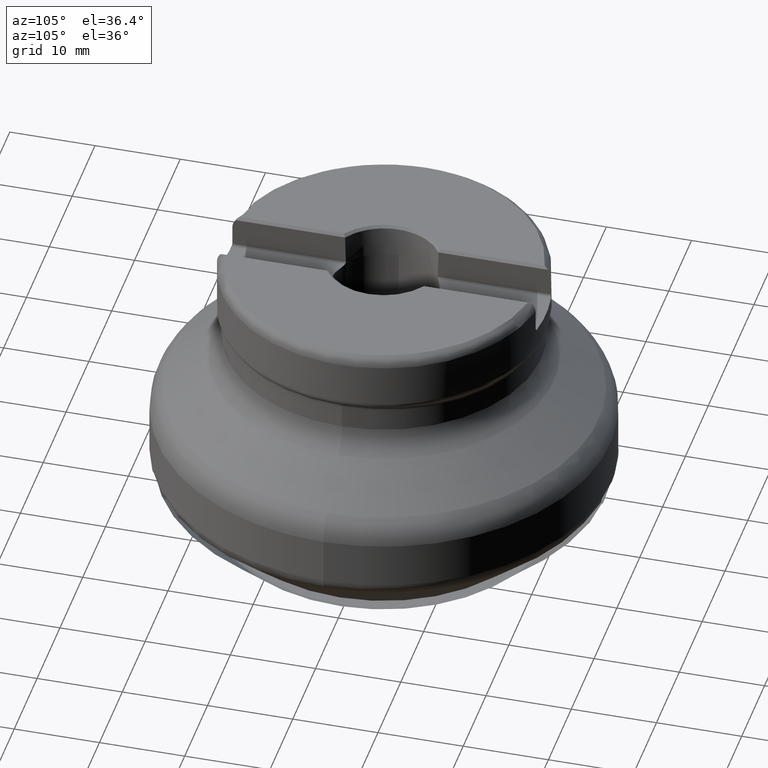
[diagram: clean part render]
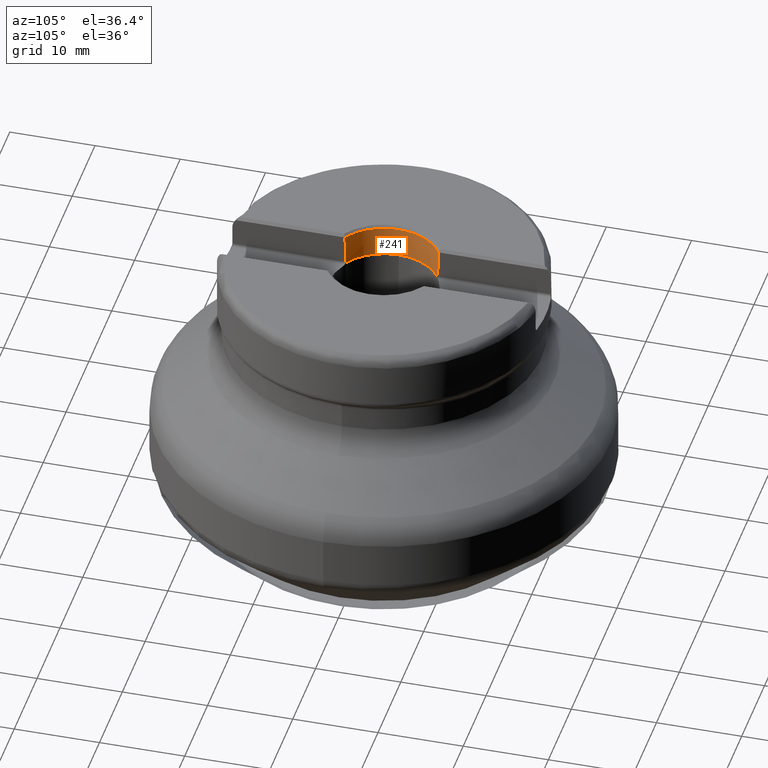
[diagram: same view with one face highlighted and labeled with its STEP entity id]
A machine part, auxiliary view. The second image highlights one B-rep face of the part: STEP entity #241.
In plain terms, the highlighted conical surface has half-angle 1.5 deg.
Its self-contained STEP definition (entity closure, byte-faithful):
#112=ELLIPSE('',#1220,8.99105036735796,6.35545258868396);
#113=ELLIPSE('',#1222,8.99105036735796,6.35545258868396);
#168=CONICAL_SURFACE('',#1223,6.45474368627675,1.49999999999999);
#206=FACE_OUTER_BOUND('',#507,.T.);
#241=ADVANCED_FACE('',(#206),#168,.F.);
#507=EDGE_LOOP('',(#667,#668,#669,#670,#671,#672,#673,#674));
#667=ORIENTED_EDGE('',*,*,#986,.T.);
#668=ORIENTED_EDGE('',*,*,#987,.T.);
#669=ORIENTED_EDGE('',*,*,#988,.T.);
#670=ORIENTED_EDGE('',*,*,#989,.F.);
#671=ORIENTED_EDGE('',*,*,#990,.T.);
#672=ORIENTED_EDGE('',*,*,#991,.F.);
#673=ORIENTED_EDGE('',*,*,#992,.T.);
#674=ORIENTED_EDGE('',*,*,#993,.T.);
#887=VERTEX_POINT('',#2070);
#888=VERTEX_POINT('',#2071);
#889=VERTEX_POINT('',#2073);
#890=VERTEX_POINT('',#2081);
#891=VERTEX_POINT('',#2089);
#892=VERTEX_POINT('',#2091);
#893=VERTEX_POINT('',#2099);
#894=VERTEX_POINT('',#2107);
#986=EDGE_CURVE('',#887,#888,#1077,.T.);
#987=EDGE_CURVE('',#888,#889,#112,.T.);
#988=EDGE_CURVE('',#889,#890,#1153,.T.);
#989=EDGE_CURVE('',#891,#890,#1154,.T.);
#990=EDGE_CURVE('',#891,#892,#1078,.T.);
#991=EDGE_CURVE('',#893,#892,#1155,.T.);
#992=EDGE_CURVE('',#893,#894,#1156,.T.);
#993=EDGE_CURVE('',#894,#887,#113,.T.);
#1077=CIRCLE('',#1219,6.44165341747055);
#1078=CIRCLE('',#1221,6.35);
#1153=B_SPLINE_CURVE_WITH_KNOTS('',3,(#2074,#2075,#2076,#2077,#2078,#2079,
#2080),.UNSPECIFIED.,.F.,.F.,(4,3,4),(0.,0.431382607771492,1.),
 .UNSPECIFIED.);
#1154=B_SPLINE_CURVE_WITH_KNOTS('',3,(#2082,#2083,#2084,#2085,#2086,#2087,
#2088),.UNSPECIFIED.,.F.,.F.,(4,3,4),(0.,0.166591357031262,1.),
 .UNSPECIFIED.);
#1155=B_SPLINE_CURVE_WITH_KNOTS('',3,(#2092,#2093,#2094,#2095,#2096,#2097,
#2098),.UNSPECIFIED.,.F.,.F.,(4,3,4),(0.,0.166697091380398,1.),
 .UNSPECIFIED.);
#1156=B_SPLINE_CURVE_WITH_KNOTS('',3,(#2100,#2101,#2102,#2103,#2104,#2105,
#2106),.UNSPECIFIED.,.F.,.F.,(4,3,4),(0.,0.568617392228516,1.),
 .UNSPECIFIED.);
#1219=AXIS2_PLACEMENT_3D('',#2069,#1397,#1398);
#1220=AXIS2_PLACEMENT_3D('',#2072,#1399,#1400);
#1221=AXIS2_PLACEMENT_3D('',#2090,#1401,#1402);
#1222=AXIS2_PLACEMENT_3D('',#2108,#1403,#1404);
#1223=AXIS2_PLACEMENT_3D('',#2109,#1405,#1406);
#1397=DIRECTION('',(-2.53438838747611E-15,9.45015244024697E-17,1.));
#1398=DIRECTION('',(-1.,0.,-2.1543828747719E-15));
#1399=DIRECTION('',(0.707106781186551,0.,0.707106781186544));
#1400=DIRECTION('',(-0.707106781186544,-4.97006419292196E-15,0.707106781186551));
#1401=DIRECTION('',(-1.17145536458252E-15,3.51436609374757E-15,-1.));
#1402=DIRECTION('',(-1.,0.,1.09273919746571E-15));
#1403=DIRECTION('',(0.707106781186551,0.,0.707106781186544));
#1404=DIRECTION('',(-0.707106781186544,-4.97006419292196E-15,0.707106781186551));
#1405=DIRECTION('',(1.17145536458252E-15,-3.51436609374757E-15,1.));
#1406=DIRECTION('',(-1.,-4.53150750976749E-30,2.12584328462661E-15));
#2069=CARTESIAN_POINT('',(4.05617624272186E-14,-1.21685287281656E-13,34.6251028025074));
#2070=CARTESIAN_POINT('',(-3.37510280250728,5.48667292840715,34.6251028025074));
#2071=CARTESIAN_POINT('',(-3.37510280250728,-5.48667292840739,34.6251028025074));
#2072=CARTESIAN_POINT('',(-0.166480470848489,-1.10994087073654E-13,31.4164804708485));
#2073=CARTESIAN_POINT('',(-3.37499999999996,-5.48673300509829,34.625));
#2074=CARTESIAN_POINT('',(-3.37499999999996,-5.48673300509829,34.625));
#2075=CARTESIAN_POINT('',(-3.37499999999996,-5.47186168036689,34.1412750947273));
#2076=CARTESIAN_POINT('',(-3.37499999999996,-5.45697377547707,33.6575506988856));
#2077=CARTESIAN_POINT('',(-3.37499999999996,-5.44206887898418,33.1738268268874));
#2078=CARTESIAN_POINT('',(-3.37499999999996,-5.42242232119293,32.5362169641989));
#2079=CARTESIAN_POINT('',(-3.37499999999996,-5.40274624282224,31.8986080103927));
#2080=CARTESIAN_POINT('',(-3.37499999999996,-5.38303966235516,31.261));
#2081=CARTESIAN_POINT('',(-3.37499999999996,-5.38303966235516,31.261));
#2082=CARTESIAN_POINT('',(-3.35117017425624,-5.3937147183714,31.125));
#2083=CARTESIAN_POINT('',(-3.35377940992307,-5.39231606449995,31.1322170340843));
#2084=CARTESIAN_POINT('',(-3.35618986816,-5.39104159601097,31.1395346632188));
#2085=CARTESIAN_POINT('',(-3.3583903938372,-5.38989866243644,31.1469306968842));
#2086=CARTESIAN_POINT('',(-3.36924883021094,-5.38425888661967,31.1834262314765));
#2087=CARTESIAN_POINT('',(-3.37499999999996,-5.38185055504681,31.2225263365309));
#2088=CARTESIAN_POINT('',(-3.37499999999996,-5.38303966235516,31.261));
#2089=CARTESIAN_POINT('',(-3.35117017425624,-5.3937147183714,31.125));
#2090=CARTESIAN_POINT('',(3.64615482226311E-14,-1.09384644667893E-13,31.125));
#2091=CARTESIAN_POINT('',(-3.35117017425624,5.39371471837119,31.125));
#2092=CARTESIAN_POINT('',(-3.37499999999996,5.38303966235494,31.261));
#2093=CARTESIAN_POINT('',(-3.37499999999996,5.38279848676264,31.2531967441375));
#2094=CARTESIAN_POINT('',(-3.37477130958237,5.38270042785494,31.2453844011207));
#2095=CARTESIAN_POINT('',(-3.37431443193173,5.3827459704975,31.2375909322909));
#2096=CARTESIAN_POINT('',(-3.37206198616956,5.38297049960738,31.1991684666399));
#2097=CARTESIAN_POINT('',(-3.36404439319528,5.38681362607435,31.1606095381008));
#2098=CARTESIAN_POINT('',(-3.35117017425624,5.39371471837119,31.125));
#2099=CARTESIAN_POINT('',(-3.37499999999996,5.38303966235494,31.261));
#2100=CARTESIAN_POINT('',(-3.37499999999996,5.38303966235494,31.261));
#2101=CARTESIAN_POINT('',(-3.37499999999996,5.40274624282202,31.8986080103927));
#2102=CARTESIAN_POINT('',(-3.37499999999996,5.4224223211927,32.536216964199));
#2103=CARTESIAN_POINT('',(-3.37499999999996,5.44206887898394,33.1738268268874));
#2104=CARTESIAN_POINT('',(-3.37499999999996,5.45697377547682,33.6575506988856));
#2105=CARTESIAN_POINT('',(-3.37499999999996,5.47186168036665,34.1412750947273));
#2106=CARTESIAN_POINT('',(-3.37499999999996,5.48673300509805,34.625));
#2107=CARTESIAN_POINT('',(-3.37499999999996,5.48673300509805,34.625));
#2108=CARTESIAN_POINT('',(-0.166480470848489,-1.10994087073654E-13,31.4164804708485));
#2109=CARTESIAN_POINT('',(4.11473696809612E-14,-1.23442109042884E-13,35.125));